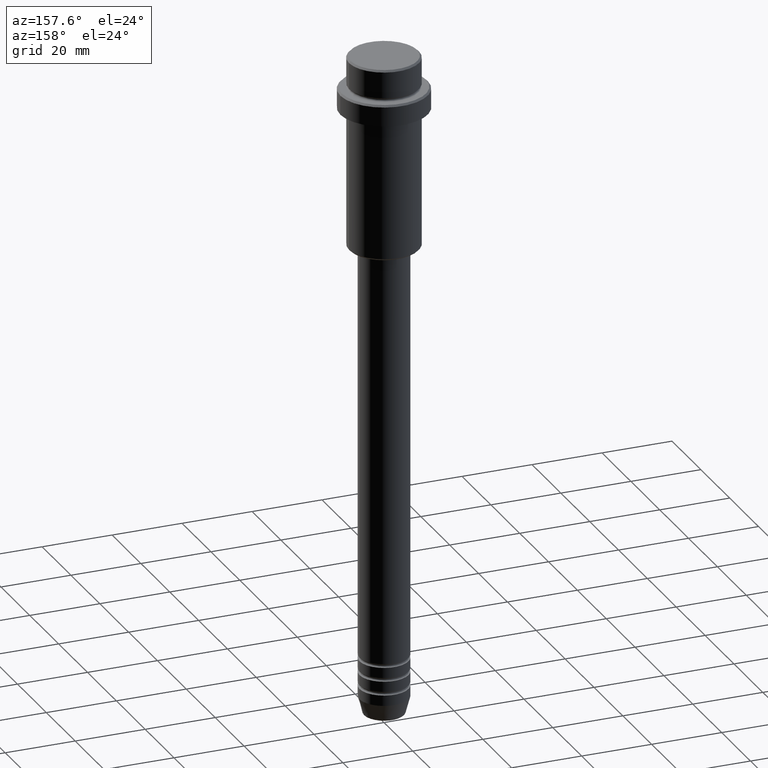
[diagram: clean part render]
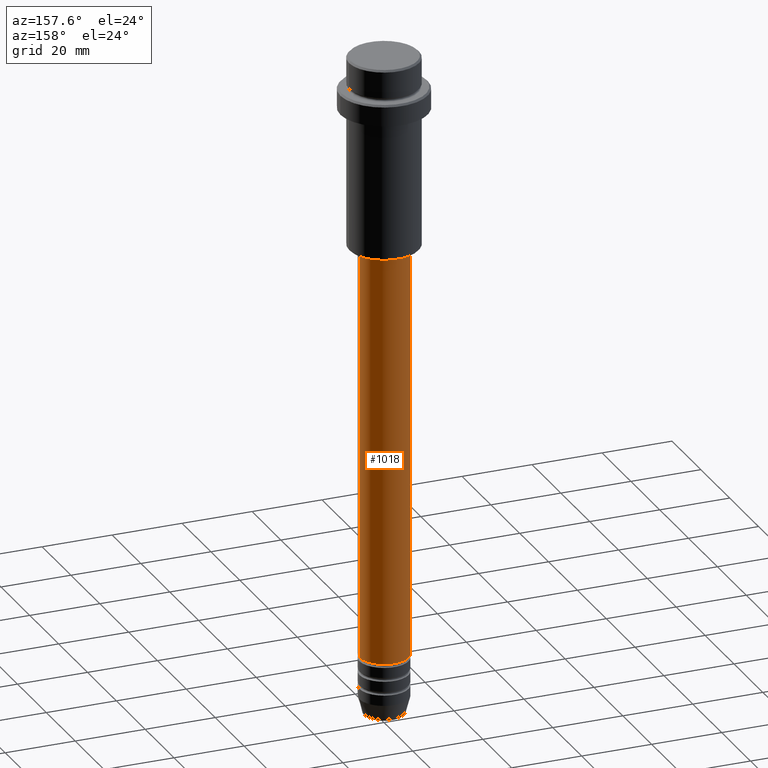
[diagram: same view with one face highlighted and labeled with its STEP entity id]
A machine part, auxiliary view. The second image highlights one B-rep face of the part: STEP entity #1018.
In plain terms, the highlighted cylindrical surface (edge-blend (fillet) strip) has radius 7 mm, axis along (-0, -0, 1).
Its self-contained STEP definition (entity closure, byte-faithful):
#55 = CIRCLE ( 'NONE', #1165, 7.000000000000000000 ) ;
#82 = DIRECTION ( 'NONE',  ( -0.000000000000000000, -0.000000000000000000, 1.000000000000000000 ) ) ;
#86 = CARTESIAN_POINT ( 'NONE',  ( 0.000000000000000000, 0.000000000000000000, -56.00000000000000000 ) ) ;
#196 = DIRECTION ( 'NONE',  ( 1.000000000000000000, 0.000000000000000000, 0.000000000000000000 ) ) ;
#284 = CARTESIAN_POINT ( 'NONE',  ( 7.000000000000000000, 0.000000000000000000, -172.9999999999999147 ) ) ;
#301 = DIRECTION ( 'NONE',  ( -0.000000000000000000, -0.000000000000000000, 1.000000000000000000 ) ) ;
#304 = EDGE_CURVE ( 'NONE', #497, #351, #1088, .T. ) ;
#342 = DIRECTION ( 'NONE',  ( -0.000000000000000000, -0.000000000000000000, 1.000000000000000000 ) ) ;
#351 = VERTEX_POINT ( 'NONE', #740 ) ;
#403 = LINE ( 'NONE', #1270, #731 ) ;
#427 = DIRECTION ( 'NONE',  ( 1.000000000000000000, 0.000000000000000000, 0.000000000000000000 ) ) ;
#429 = EDGE_CURVE ( 'NONE', #1337, #1414, #403, .T. ) ;
#463 = DIRECTION ( 'NONE',  ( 1.000000000000000000, 0.000000000000000000, 0.000000000000000000 ) ) ;
#497 = VERTEX_POINT ( 'NONE', #284 ) ;
#549 = VECTOR ( 'NONE', #892, 1000.000000000000000 ) ;
#615 = EDGE_CURVE ( 'NONE', #351, #1414, #982, .T. ) ;
#619 = AXIS2_PLACEMENT_3D ( 'NONE', #86, #342, #463 ) ;
#627 = FACE_OUTER_BOUND ( 'NONE', #814, .T. ) ;
#641 = ORIENTED_EDGE ( 'NONE', *, *, #785, .T. ) ;
#731 = VECTOR ( 'NONE', #744, 1000.000000000000000 ) ;
#740 = CARTESIAN_POINT ( 'NONE',  ( 7.000000000000000000, 0.000000000000000000, -56.00000000000000000 ) ) ;
#744 = DIRECTION ( 'NONE',  ( -0.000000000000000000, -0.000000000000000000, 1.000000000000000000 ) ) ;
#785 = EDGE_CURVE ( 'NONE', #497, #1337, #55, .T. ) ;
#814 = EDGE_LOOP ( 'NONE', ( #641, #1132, #1286, #1273 ) ) ;
#837 = CYLINDRICAL_SURFACE ( 'NONE', #1031, 7.000000000000000000 ) ;
#869 = CARTESIAN_POINT ( 'NONE',  ( -7.000000000000000000, 8.572527594031473190E-16, -56.00000000000000000 ) ) ;
#892 = DIRECTION ( 'NONE',  ( -0.000000000000000000, -0.000000000000000000, 1.000000000000000000 ) ) ;
#982 = CIRCLE ( 'NONE', #619, 7.000000000000000000 ) ;
#1018 = ADVANCED_FACE ( 'NONE', ( #627 ), #837, .T. ) ;
#1031 = AXIS2_PLACEMENT_3D ( 'NONE', #1186, #82, #427 ) ;
#1088 = LINE ( 'NONE', #1200, #549 ) ;
#1132 = ORIENTED_EDGE ( 'NONE', *, *, #429, .T. ) ;
#1135 = CARTESIAN_POINT ( 'NONE',  ( -7.000000000000000000, 8.572527594031473190E-16, -172.9999999999999147 ) ) ;
#1165 = AXIS2_PLACEMENT_3D ( 'NONE', #1182, #301, #196 ) ;
#1182 = CARTESIAN_POINT ( 'NONE',  ( 0.000000000000000000, 0.000000000000000000, -172.9999999999999147 ) ) ;
#1186 = CARTESIAN_POINT ( 'NONE',  ( 0.000000000000000000, 0.000000000000000000, 0.000000000000000000 ) ) ;
#1200 = CARTESIAN_POINT ( 'NONE',  ( 7.000000000000000000, 0.000000000000000000, 0.000000000000000000 ) ) ;
#1270 = CARTESIAN_POINT ( 'NONE',  ( -7.000000000000000000, 8.572527594031473190E-16, 0.000000000000000000 ) ) ;
#1273 = ORIENTED_EDGE ( 'NONE', *, *, #304, .F. ) ;
#1286 = ORIENTED_EDGE ( 'NONE', *, *, #615, .F. ) ;
#1337 = VERTEX_POINT ( 'NONE', #1135 ) ;
#1414 = VERTEX_POINT ( 'NONE', #869 ) ;